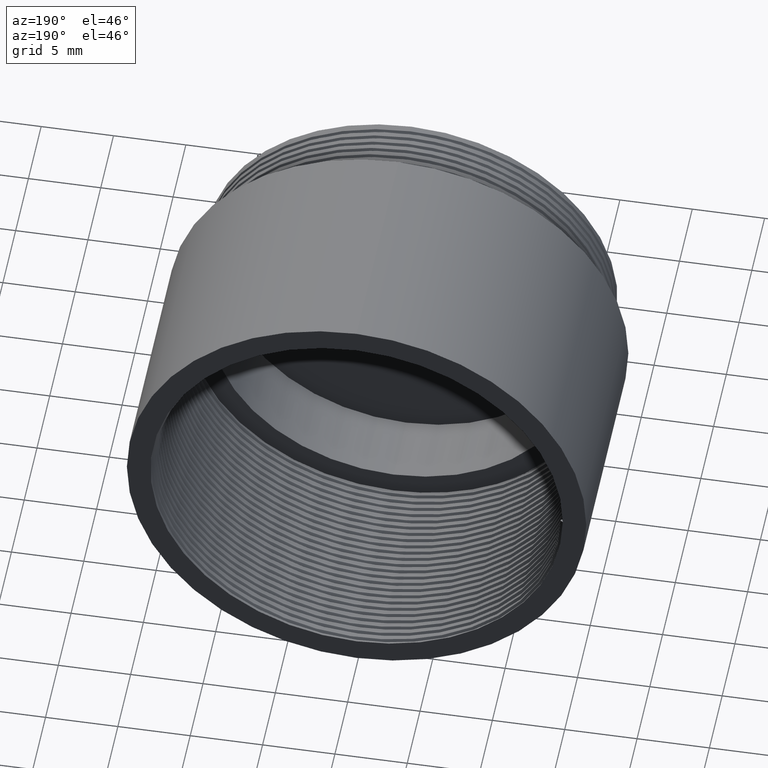
[diagram: clean part render]
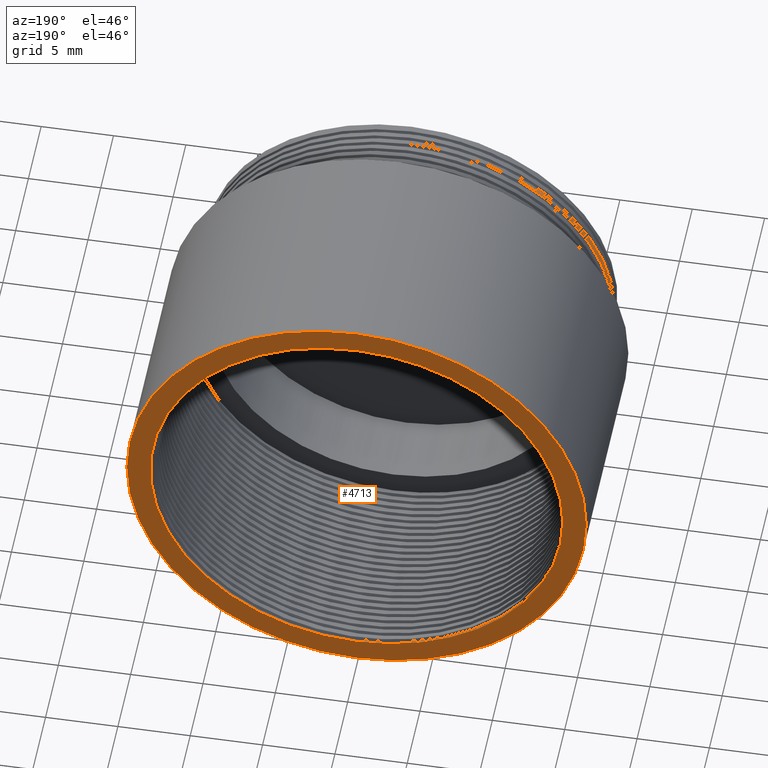
[diagram: same view with one face highlighted and labeled with its STEP entity id]
A machine part, auxiliary view. The second image highlights one B-rep face of the part: STEP entity #4713.
In plain terms, the highlighted planar face has unit normal (-0, 1, 0).
Its self-contained STEP definition (entity closure, byte-faithful):
#74 = DIRECTION ( 'NONE',  ( 0.000000000000000000, -1.000000000000000000, 0.000000000000000000 ) ) ;
#78 = DIRECTION ( 'NONE',  ( 0.000000000000000000, 0.000000000000000000, -1.000000000000000000 ) ) ;
#144 = VERTEX_POINT ( 'NONE', #5049 ) ;
#362 = FACE_BOUND ( 'NONE', #4380, .T. ) ;
#394 = PLANE ( 'NONE',  #748 ) ;
#510 = CIRCLE ( 'NONE', #2766, 15.87500000000000000 ) ;
#516 = AXIS2_PLACEMENT_3D ( 'NONE', #1512, #4295, #1090 ) ;
#550 = ORIENTED_EDGE ( 'NONE', *, *, #3296, .F. ) ;
#611 = DIRECTION ( 'NONE',  ( 0.000000000000000000, -1.000000000000000000, 0.000000000000000000 ) ) ;
#685 = DIRECTION ( 'NONE',  ( 0.000000000000000000, -1.000000000000000000, 0.000000000000000000 ) ) ;
#694 = CARTESIAN_POINT ( 'NONE',  ( -14.25000000000000000, 21.50000000000000000, 0.000000000000000000 ) ) ;
#748 = AXIS2_PLACEMENT_3D ( 'NONE', #6337, #6928, #5270 ) ;
#840 = CARTESIAN_POINT ( 'NONE',  ( 0.000000000000000000, 21.50000000000000000, -14.25000000000000000 ) ) ;
#925 = VERTEX_POINT ( 'NONE', #4124 ) ;
#1090 = DIRECTION ( 'NONE',  ( 0.000000000000000000, 0.000000000000000000, -1.000000000000000000 ) ) ;
#1449 = CIRCLE ( 'NONE', #5396, 15.87500000000000000 ) ;
#1512 = CARTESIAN_POINT ( 'NONE',  ( 0.000000000000000000, 21.50000000000000000, 0.000000000000000000 ) ) ;
#1602 = EDGE_CURVE ( 'NONE', #144, #925, #1449, .T. ) ;
#1768 = AXIS2_PLACEMENT_3D ( 'NONE', #5455, #611, #4913 ) ;
#1826 = VERTEX_POINT ( 'NONE', #5907 ) ;
#2023 = EDGE_LOOP ( 'NONE', ( #3244, #550 ) ) ;
#2171 = VERTEX_POINT ( 'NONE', #694 ) ;
#2223 = ORIENTED_EDGE ( 'NONE', *, *, #4360, .T. ) ;
#2618 = VERTEX_POINT ( 'NONE', #840 ) ;
#2766 = AXIS2_PLACEMENT_3D ( 'NONE', #3822, #74, #4839 ) ;
#3244 = ORIENTED_EDGE ( 'NONE', *, *, #1602, .F. ) ;
#3296 = EDGE_CURVE ( 'NONE', #925, #144, #510, .T. ) ;
#3576 = CARTESIAN_POINT ( 'NONE',  ( 0.000000000000000000, 21.50000000000000000, 0.000000000000000000 ) ) ;
#3607 = ORIENTED_EDGE ( 'NONE', *, *, #4482, .T. ) ;
#3789 = AXIS2_PLACEMENT_3D ( 'NONE', #5528, #685, #78 ) ;
#3822 = CARTESIAN_POINT ( 'NONE',  ( 0.000000000000000000, 21.50000000000000000, 0.000000000000000000 ) ) ;
#4121 = CIRCLE ( 'NONE', #1768, 14.25000000000000000 ) ;
#4124 = CARTESIAN_POINT ( 'NONE',  ( 1.944126793646424816E-15, 21.50000000000000000, 15.87500000000000000 ) ) ;
#4295 = DIRECTION ( 'NONE',  ( 0.000000000000000000, -1.000000000000000000, 0.000000000000000000 ) ) ;
#4360 = EDGE_CURVE ( 'NONE', #1826, #2171, #6838, .T. ) ;
#4380 = EDGE_LOOP ( 'NONE', ( #6897, #3607, #2223 ) ) ;
#4482 = EDGE_CURVE ( 'NONE', #2618, #1826, #4121, .T. ) ;
#4713 = ADVANCED_FACE ( 'NONE', ( #362, #5836 ), #394, .T. ) ;
#4839 = DIRECTION ( 'NONE',  ( 0.000000000000000000, 0.000000000000000000, -1.000000000000000000 ) ) ;
#4913 = DIRECTION ( 'NONE',  ( 0.000000000000000000, 0.000000000000000000, -1.000000000000000000 ) ) ;
#5049 = CARTESIAN_POINT ( 'NONE',  ( 0.000000000000000000, 21.50000000000000000, -15.87500000000000000 ) ) ;
#5129 = DIRECTION ( 'NONE',  ( 0.000000000000000000, 0.000000000000000000, -1.000000000000000000 ) ) ;
#5264 = EDGE_CURVE ( 'NONE', #2171, #2618, #6167, .T. ) ;
#5270 = DIRECTION ( 'NONE',  ( 1.000000000000000000, 0.000000000000000000, 0.000000000000000000 ) ) ;
#5396 = AXIS2_PLACEMENT_3D ( 'NONE', #3576, #5730, #5129 ) ;
#5455 = CARTESIAN_POINT ( 'NONE',  ( 0.000000000000000000, 21.50000000000000000, 0.000000000000000000 ) ) ;
#5528 = CARTESIAN_POINT ( 'NONE',  ( 0.000000000000000000, 21.50000000000000000, 0.000000000000000000 ) ) ;
#5730 = DIRECTION ( 'NONE',  ( 0.000000000000000000, -1.000000000000000000, 0.000000000000000000 ) ) ;
#5836 = FACE_OUTER_BOUND ( 'NONE', #2023, .T. ) ;
#5907 = CARTESIAN_POINT ( 'NONE',  ( 1.745121688784980200E-15, 21.50000000000000000, 14.25000000000000000 ) ) ;
#6167 = CIRCLE ( 'NONE', #516, 14.25000000000000000 ) ;
#6337 = CARTESIAN_POINT ( 'NONE',  ( 15.87500000000000000, 21.50000000000000000, 0.000000000000000000 ) ) ;
#6838 = CIRCLE ( 'NONE', #3789, 14.25000000000000000 ) ;
#6897 = ORIENTED_EDGE ( 'NONE', *, *, #5264, .T. ) ;
#6928 = DIRECTION ( 'NONE',  ( -0.000000000000000000, 1.000000000000000000, 0.000000000000000000 ) ) ;